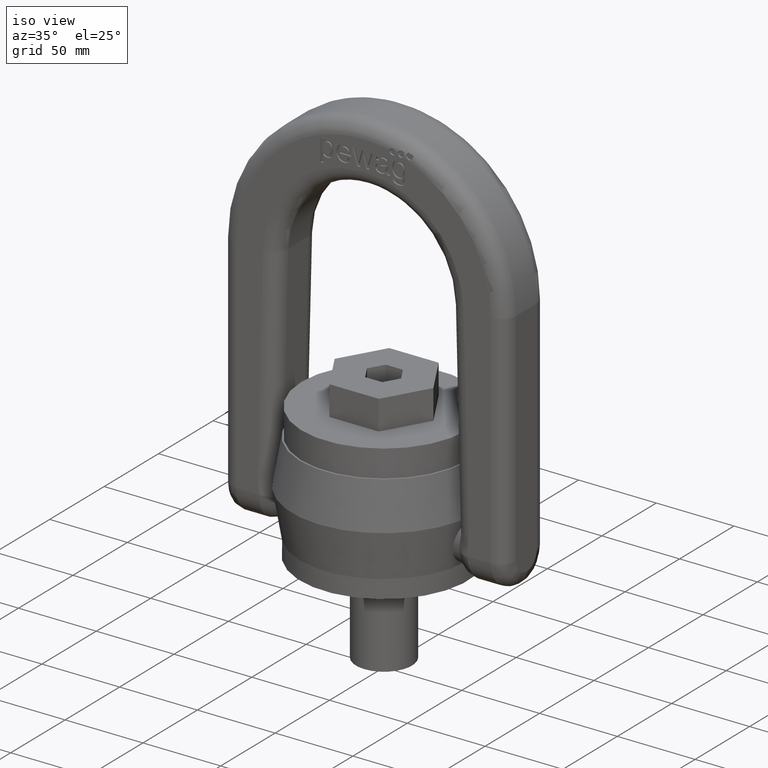
[diagram: clean part render]
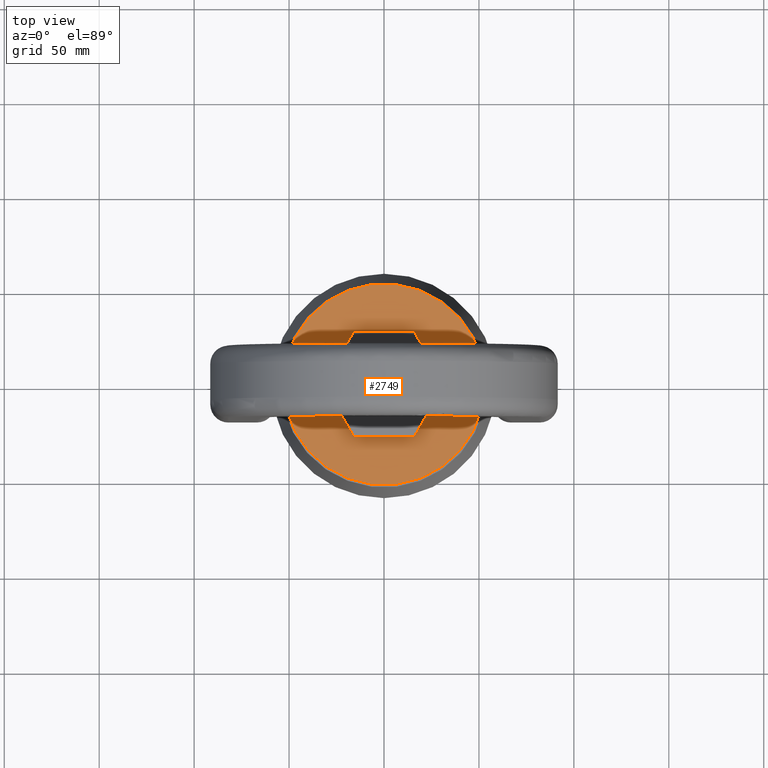
[diagram: tour spotlight — one face highlighted and labeled with its STEP entity id]
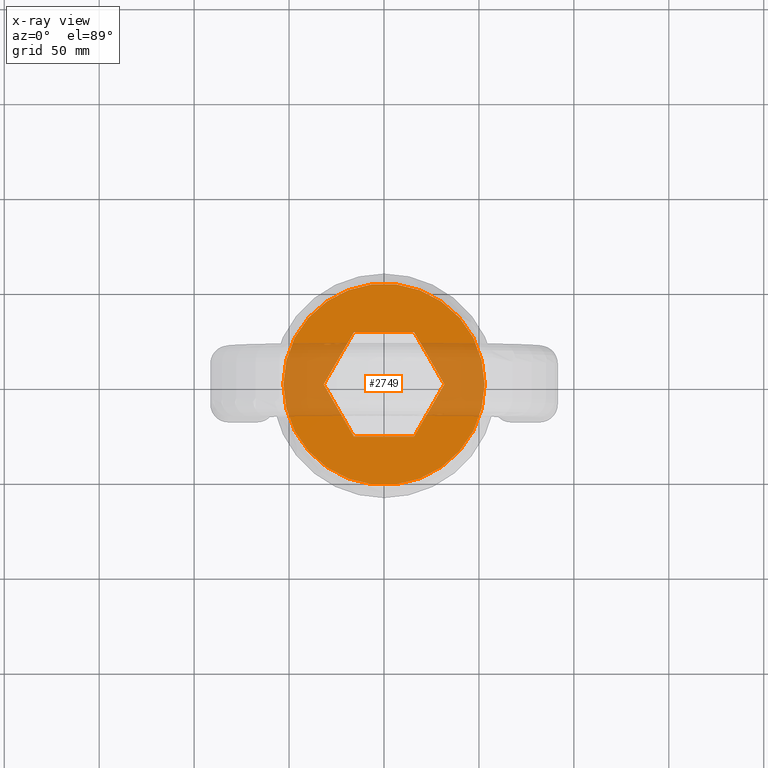
[diagram: x-ray of the same camera — body ghosted, this tour face saturated]
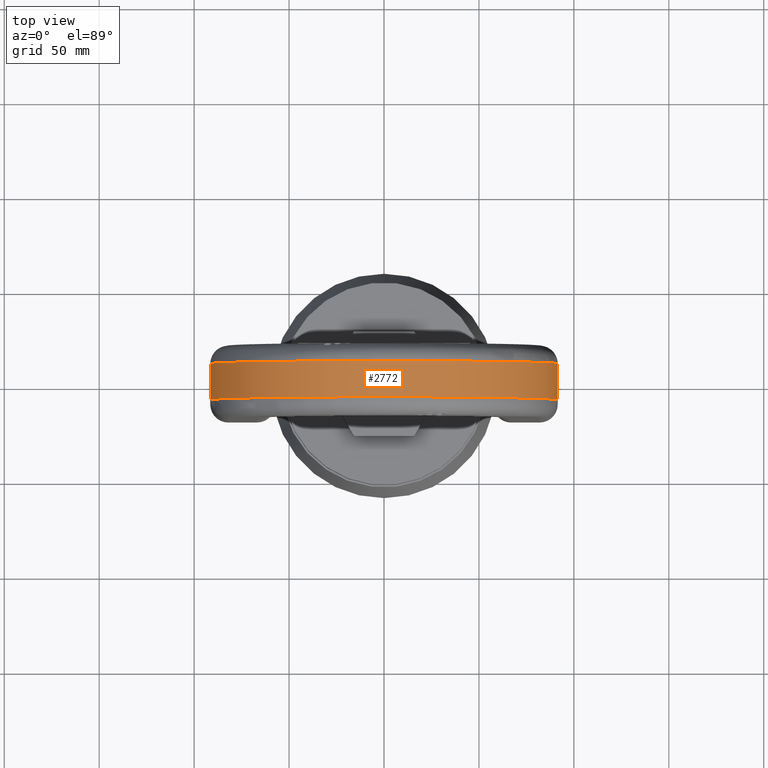
[diagram: tour spotlight — one face highlighted and labeled with its STEP entity id]
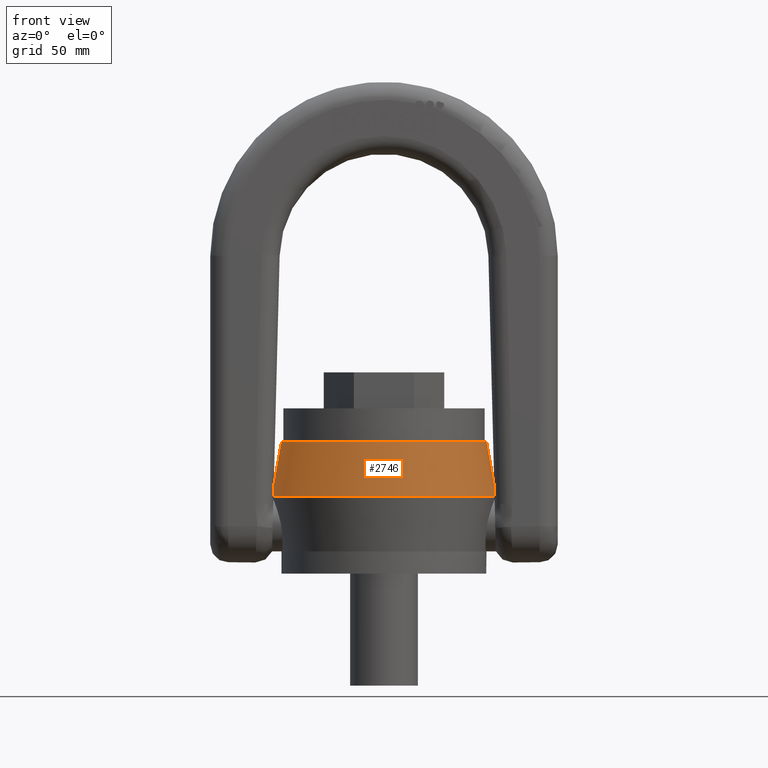
[diagram: tour spotlight — one face highlighted and labeled with its STEP entity id]
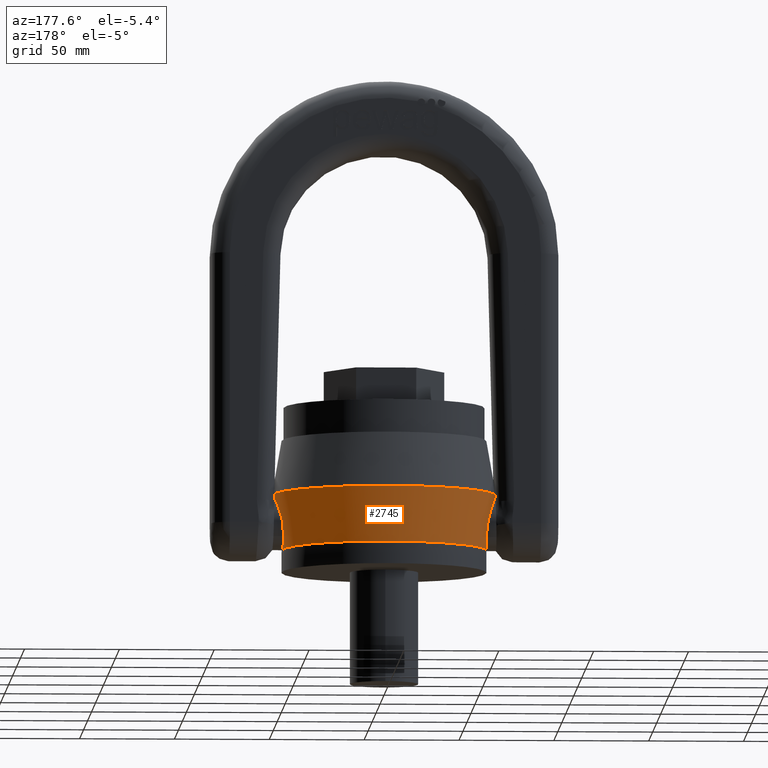
[diagram: tour spotlight — one face highlighted and labeled with its STEP entity id]
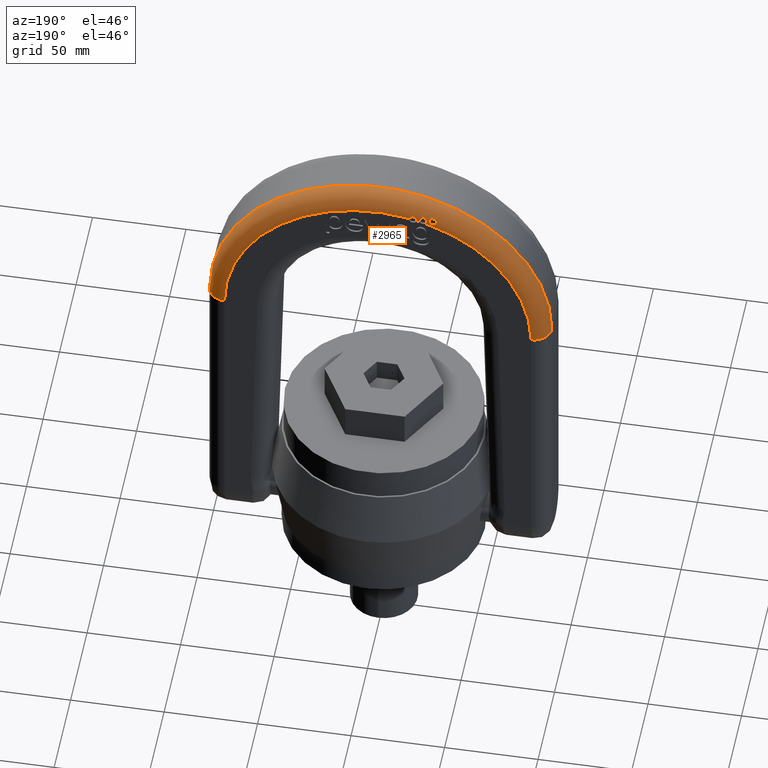
[diagram: tour spotlight — one face highlighted and labeled with its STEP entity id]
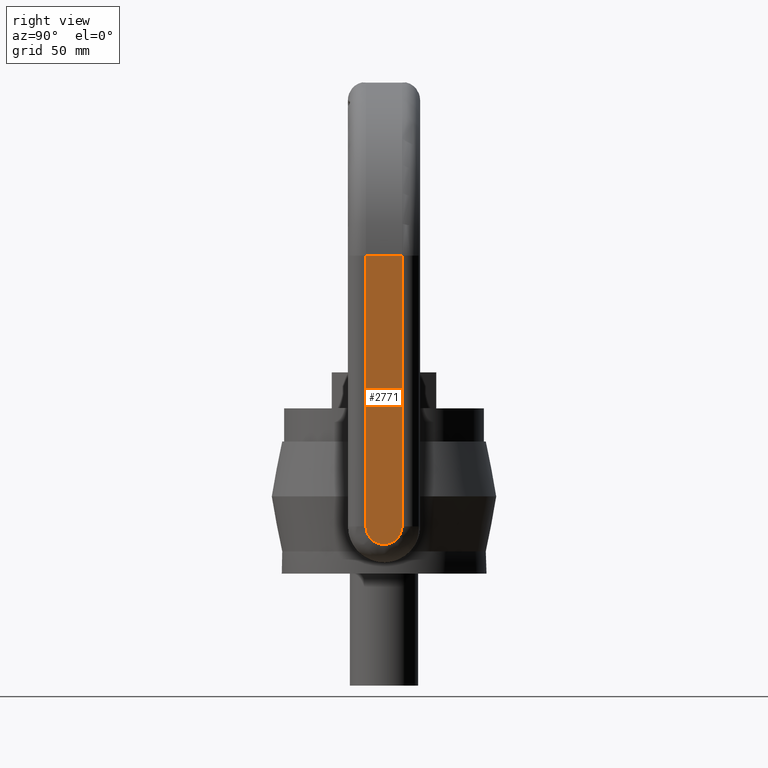
[diagram: tour spotlight — one face highlighted and labeled with its STEP entity id]
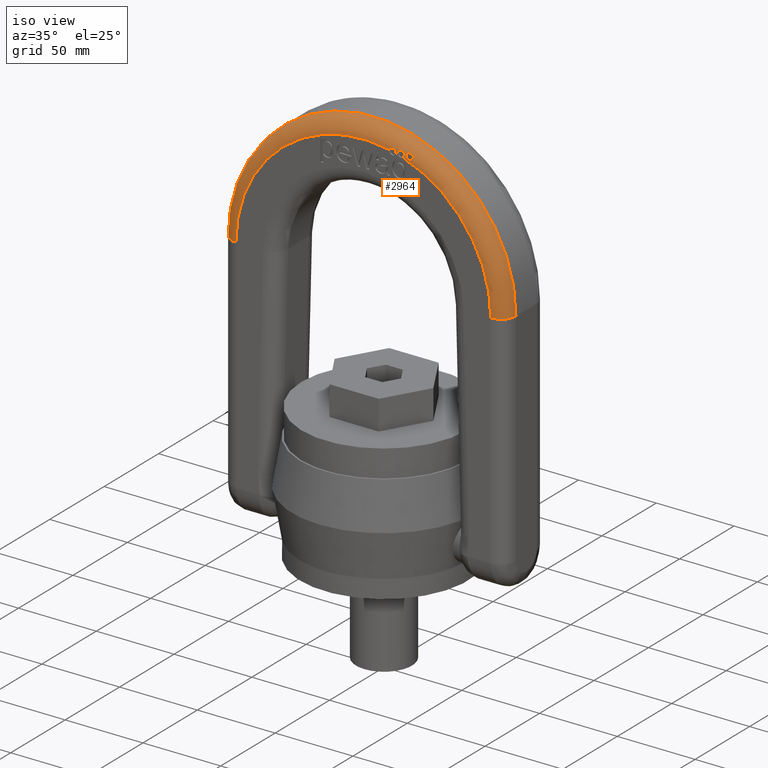
[diagram: tour spotlight — one face highlighted and labeled with its STEP entity id]
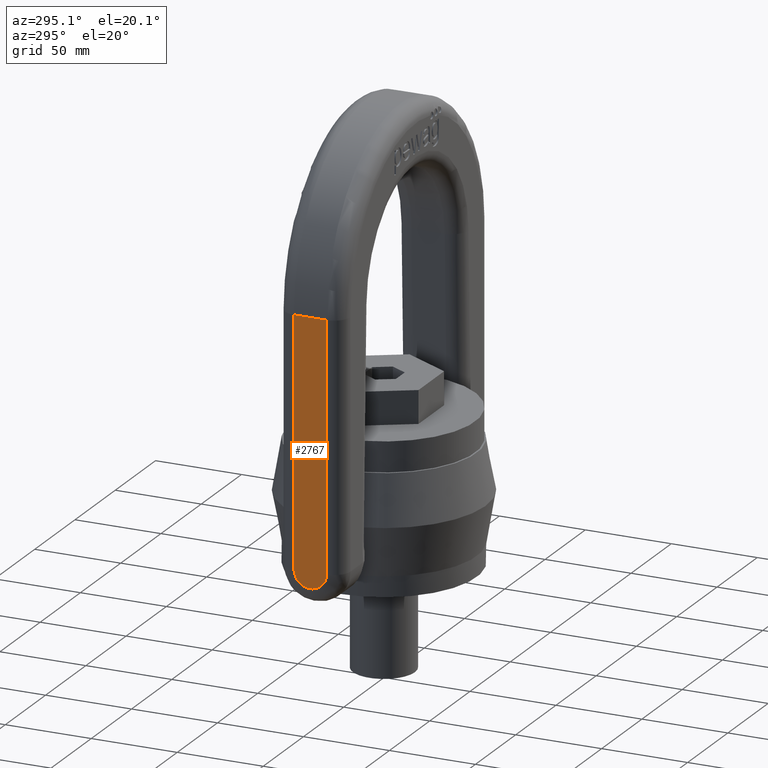
[diagram: tour spotlight — one face highlighted and labeled with its STEP entity id]
A machine part: a face-by-face anatomy tour. The part has 240 B-rep faces; the first image is the clean iso view, then the 8 largest visible faces are spotlighted one at a time (largest first), each with its STEP entity span.

Face 1 — top view, entity #2749. An x-ray twin of the same camera follows (body ghosted, this face saturated) — the face is partly hidden behind the body. In plain terms, the highlighted planar face has unit normal (0, 0, 1).
Definition (entity closure, byte-faithful):
#1757=LINE('',#6623,#2039);
#1758=LINE('',#6626,#2040);
#1759=LINE('',#6628,#2041);
#1760=LINE('',#6630,#2042);
#1761=LINE('',#6632,#2043);
#1762=LINE('',#6634,#2044);
#2039=VECTOR('',#5846,1.);
#2040=VECTOR('',#5847,1.);
#2041=VECTOR('',#5848,1.);
#2042=VECTOR('',#5849,1.);
#2043=VECTOR('',#5850,1.);
#2044=VECTOR('',#5851,1.);
#2630=PLANE('',#5622);
#2749=ADVANCED_FACE('',(#3017,#3018),#2630,.T.);
#3017=FACE_BOUND('',#3078,.T.);
#3018=FACE_BOUND('',#3079,.T.);
#3078=EDGE_LOOP('',(#3352,#3353,#3354,#3355,#3356,#3357));
#3079=EDGE_LOOP('',(#3358));
#3352=ORIENTED_EDGE('',*,*,#4953,.F.);
#3353=ORIENTED_EDGE('',*,*,#4954,.F.);
#3354=ORIENTED_EDGE('',*,*,#4955,.F.);
#3355=ORIENTED_EDGE('',*,*,#4956,.F.);
#3356=ORIENTED_EDGE('',*,*,#4957,.F.);
#3357=ORIENTED_EDGE('',*,*,#4958,.F.);
#3358=ORIENTED_EDGE('',*,*,#4952,.F.);
#4552=VERTEX_POINT('',#6621);
#4553=VERTEX_POINT('',#6624);
#4554=VERTEX_POINT('',#6625);
#4555=VERTEX_POINT('',#6627);
#4556=VERTEX_POINT('',#6629);
#4557=VERTEX_POINT('',#6631);
#4558=VERTEX_POINT('',#6633);
#4952=EDGE_CURVE('',#4552,#4552,#5556,.T.);
#4953=EDGE_CURVE('',#4553,#4554,#1757,.T.);
#4954=EDGE_CURVE('',#4555,#4553,#1758,.T.);
#4955=EDGE_CURVE('',#4556,#4555,#1759,.T.);
#4956=EDGE_CURVE('',#4557,#4556,#1760,.T.);
#4957=EDGE_CURVE('',#4558,#4557,#1761,.T.);
#4958=EDGE_CURVE('',#4554,#4558,#1762,.T.);
#5556=CIRCLE('',#5620,53.);
#5620=AXIS2_PLACEMENT_3D('',#6620,#5842,#5843);
#5622=AXIS2_PLACEMENT_3D('',#6635,#5852,#5853);
#5842=DIRECTION('',(0.,0.,-1.));
#5843=DIRECTION('',(-1.,0.,0.));
#5846=DIRECTION('',(0.5,-0.866025403784439,0.));
#5847=DIRECTION('',(-0.5,-0.866025403784439,0.));
#5848=DIRECTION('',(-1.,0.,0.));
#5849=DIRECTION('',(-0.5,0.866025403784439,0.));
#5850=DIRECTION('',(0.5,0.866025403784439,0.));
#5851=DIRECTION('',(1.,0.,0.));
#5852=DIRECTION('',(0.,0.,1.));
#5853=DIRECTION('',(1.,0.,0.));
#6620=CARTESIAN_POINT('',(0.,0.,87.));
#6621=CARTESIAN_POINT('',(-53.,0.,87.));
#6623=CARTESIAN_POINT('',(-31.7542648054294,0.,87.));
#6624=CARTESIAN_POINT('',(-31.7542648054294,0.,87.));
#6625=CARTESIAN_POINT('',(-15.8771324027147,-27.5,87.));
#6626=CARTESIAN_POINT('',(-15.8771324027147,27.5,87.));
#6627=CARTESIAN_POINT('',(-15.8771324027147,27.5,87.));
#6628=CARTESIAN_POINT('',(15.8771324027147,27.5,87.));
#6629=CARTESIAN_POINT('',(15.8771324027147,27.5,87.));
#6630=CARTESIAN_POINT('',(31.7542648054294,0.,87.));
#6631=CARTESIAN_POINT('',(31.7542648054294,0.,87.));
#6632=CARTESIAN_POINT('',(15.8771324027147,-27.5,87.));
#6633=CARTESIAN_POINT('',(15.8771324027147,-27.5,87.));
#6634=CARTESIAN_POINT('',(-15.8771324027147,-27.5,87.));
#6635=CARTESIAN_POINT('',(0.,53.,87.));

Face 2 — top view, entity #2772. In plain terms, the highlighted cylindrical surface (partial cylindrical patch) has radius 91.5 mm, axis along (0, 1, 0).
Definition (entity closure, byte-faithful):
#1833=LINE('',#7057,#2115);
#1843=LINE('',#7092,#2125);
#2115=VECTOR('',#5974,1.);
#2125=VECTOR('',#6004,1.);
#2434=FACE_OUTER_BOUND('',#3108,.T.);
#2772=ADVANCED_FACE('',(#2434),#2987,.T.);
#2987=CYLINDRICAL_SURFACE('',#5661,91.5);
#3108=EDGE_LOOP('',(#3533,#3534,#3535,#3536));
#3533=ORIENTED_EDGE('',*,*,#5091,.T.);
#3534=ORIENTED_EDGE('',*,*,#5093,.T.);
#3535=ORIENTED_EDGE('',*,*,#5075,.F.);
#3536=ORIENTED_EDGE('',*,*,#5094,.T.);
#4661=VERTEX_POINT('',#7058);
#4662=VERTEX_POINT('',#7059);
#4675=VERTEX_POINT('',#7091);
#4676=VERTEX_POINT('',#7093);
#5075=EDGE_CURVE('',#4661,#4662,#1833,.T.);
#5091=EDGE_CURVE('',#4676,#4675,#1843,.T.);
#5093=EDGE_CURVE('',#4675,#4662,#5569,.T.);
#5094=EDGE_CURVE('',#4661,#4676,#5570,.T.);
#5569=CIRCLE('',#5659,91.5);
#5570=CIRCLE('',#5660,91.5);
#5659=AXIS2_PLACEMENT_3D('',#7096,#6008,#6009);
#5660=AXIS2_PLACEMENT_3D('',#7097,#6010,#6011);
#5661=AXIS2_PLACEMENT_3D('',#7098,#6012,#6013);
#5974=DIRECTION('',(0.,1.,0.));
#6004=DIRECTION('',(0.,1.,0.));
#6008=DIRECTION('',(-2.34291072916505E-15,-1.,0.));
#6009=DIRECTION('',(1.,-2.35088208766256E-15,0.));
#6010=DIRECTION('',(0.,1.,0.));
#6011=DIRECTION('',(0.,0.,1.));
#6012=DIRECTION('',(0.,1.,0.));
#6013=DIRECTION('',(0.,0.,1.));
#7057=CARTESIAN_POINT('',(-91.5,-19.,167.5));
#7058=CARTESIAN_POINT('',(-91.5,-9.5,167.5));
#7059=CARTESIAN_POINT('',(-91.5,9.50000000000019,167.5));
#7091=CARTESIAN_POINT('',(91.5,9.49999999999976,167.5));
#7092=CARTESIAN_POINT('',(91.5,-19.,167.5));
#7093=CARTESIAN_POINT('',(91.5,-9.5,167.5));
#7096=CARTESIAN_POINT('',(0.,9.49999999999998,167.5));
#7097=CARTESIAN_POINT('',(0.,-9.5,167.5));
#7098=CARTESIAN_POINT('',(0.,-19.,167.5));

Face 3 — front view, entity #2746. In plain terms, the highlighted conical surface has half-angle 10 deg.
Definition (entity closure, byte-faithful):
#2412=CONICAL_SURFACE('',#5617,59.1046660915101,10.);
#2746=ADVANCED_FACE('',(#3011,#3012),#2412,.T.);
#3011=FACE_BOUND('',#3072,.T.);
#3012=FACE_BOUND('',#3073,.T.);
#3072=EDGE_LOOP('',(#3346));
#3073=EDGE_LOOP('',(#3347));
#3346=ORIENTED_EDGE('',*,*,#4950,.T.);
#3347=ORIENTED_EDGE('',*,*,#4949,.F.);
#4549=VERTEX_POINT('',#6612);
#4550=VERTEX_POINT('',#6615);
#4949=EDGE_CURVE('',#4549,#4549,#5553,.T.);
#4950=EDGE_CURVE('',#4550,#4550,#5554,.T.);
#5553=CIRCLE('',#5614,59.1046660915101);
#5554=CIRCLE('',#5616,54.);
#5614=AXIS2_PLACEMENT_3D('',#6611,#5830,#5831);
#5616=AXIS2_PLACEMENT_3D('',#6614,#5834,#5835);
#5617=AXIS2_PLACEMENT_3D('',#6616,#5836,#5837);
#5830=DIRECTION('',(0.,0.,-1.));
#5831=DIRECTION('',(-1.,0.,0.));
#5834=DIRECTION('',(0.,0.,-1.));
#5835=DIRECTION('',(-1.,0.,0.));
#5836=DIRECTION('',(0.,0.,-1.));
#5837=DIRECTION('',(-1.,0.,-1.17892288453515E-16));
#6611=CARTESIAN_POINT('',(0.,0.,40.65));
#6612=CARTESIAN_POINT('',(-59.1046660915101,0.,40.65));
#6614=CARTESIAN_POINT('',(0.,0.,69.6));
#6615=CARTESIAN_POINT('',(-54.,0.,69.6));
#6616=CARTESIAN_POINT('',(0.,0.,40.65));

Face 4 — auxiliary view, entity #2745. In plain terms, the highlighted conical surface has half-angle 10 deg.
Definition (entity closure, byte-faithful):
#2411=CONICAL_SURFACE('',#5615,54.,10.);
#2745=ADVANCED_FACE('',(#3009,#3010),#2411,.T.);
#3009=FACE_BOUND('',#3070,.T.);
#3010=FACE_BOUND('',#3071,.T.);
#3070=EDGE_LOOP('',(#3344));
#3071=EDGE_LOOP('',(#3345));
#3344=ORIENTED_EDGE('',*,*,#4949,.T.);
#3345=ORIENTED_EDGE('',*,*,#4945,.F.);
#4545=VERTEX_POINT('',#6600);
#4549=VERTEX_POINT('',#6612);
#4945=EDGE_CURVE('',#4545,#4545,#5549,.T.);
#4949=EDGE_CURVE('',#4549,#4549,#5553,.T.);
#5549=CIRCLE('',#5606,54.);
#5553=CIRCLE('',#5614,59.1046660915101);
#5606=AXIS2_PLACEMENT_3D('',#6599,#5814,#5815);
#5614=AXIS2_PLACEMENT_3D('',#6611,#5830,#5831);
#5615=AXIS2_PLACEMENT_3D('',#6613,#5832,#5833);
#5814=DIRECTION('',(0.,0.,-1.));
#5815=DIRECTION('',(-1.,0.,0.));
#5830=DIRECTION('',(0.,0.,-1.));
#5831=DIRECTION('',(-1.,0.,0.));
#5832=DIRECTION('',(0.,0.,1.));
#5833=DIRECTION('',(1.,0.,1.88289217207744E-16));
#6599=CARTESIAN_POINT('',(0.,0.,11.7));
#6600=CARTESIAN_POINT('',(-54.,0.,11.7));
#6611=CARTESIAN_POINT('',(0.,0.,40.65));
#6612=CARTESIAN_POINT('',(-59.1046660915101,0.,40.65));
#6613=CARTESIAN_POINT('',(0.,0.,11.7));

Face 5 — auxiliary view, entity #2965. In plain terms, the highlighted toroidal blend (fillet) surface has major radius 82 mm and minor (blend) radius 9.5 mm.
Definition (entity closure, byte-faithful):
#210=TOROIDAL_SURFACE('',#5789,82.,9.5);
#530=B_SPLINE_CURVE_WITH_KNOTS('',3,(#8495,#8496,#8497,#8498,#8499,#8500,
#8501,#8502,#8503,#8504,#8505,#8506,#8507,#8508,#8509,#8510,#8511,#8512,
#8513,#8514,#8515,#8516,#8517,#8518,#8519,#8520,#8521,#8522,#8523,#8524,
#8525,#8526,#8527,#8528,#8529,#8530,#8531,#8532,#8533,#8534,#8535,#8536,
#8537),.UNSPECIFIED.,.F.,.F.,(4,3,3,3,3,3,3,3,3,3,3,3,3,3,4),(0.,0.0745606969247898,
0.149123937915882,0.223777270084363,0.300483711126919,0.379444563225894,
0.457599018131704,0.531726707331943,0.60322854605804,0.676311237596835,
0.753266436787547,0.832390528875145,0.910046397434114,0.985156621746398,
1.),.UNSPECIFIED.);
#531=B_SPLINE_CURVE_WITH_KNOTS('',3,(#8542,#8543,#8544,#8545,#8546,#8547,
#8548,#8549,#8550,#8551,#8552,#8553,#8554,#8555,#8556,#8557,#8558,#8559,
#8560,#8561,#8562,#8563,#8564,#8565,#8566,#8567,#8568,#8569),
 .UNSPECIFIED.,.F.,.F.,(4,3,3,3,3,3,3,3,3,4),(0.,0.111981985041676,0.223858992847018,
0.337248614426887,0.451293500957239,0.563607174327733,0.674738286812412,
0.787131338013872,0.901193773217703,1.),.UNSPECIFIED.);
#556=B_SPLINE_CURVE_WITH_KNOTS('',3,(#8777,#8778,#8779,#8780,#8781,#8782,
#8783,#8784,#8785,#8786,#8787,#8788,#8789,#8790,#8791,#8792,#8793,#8794,
#8795,#8796,#8797,#8798,#8799,#8800,#8801,#8802,#8803,#8804,#8805,#8806,
#8807,#8808,#8809,#8810,#8811,#8812,#8813,#8814,#8815,#8816,#8817,#8818,
#8819),.UNSPECIFIED.,.F.,.F.,(4,3,3,3,3,3,3,3,3,3,3,3,3,3,4),(0.,0.0639135431170535,
0.147027193075006,0.228834789798668,0.305090818542821,0.377545304044842,
0.449104889187727,0.520948384143121,0.575898031268706,0.647694317191063,
0.719500405730673,0.791176592717571,0.86420574718199,0.941140281281008,
1.),.UNSPECIFIED.);
#2965=ADVANCED_FACE('',(#3061,#3062),#210,.T.);
#3061=FACE_BOUND('',#3320,.T.);
#3062=FACE_BOUND('',#3321,.T.);
#3320=EDGE_LOOP('',(#4475,#4476,#4477,#4478,#4479,#4480,#4481,#4482));
#3321=EDGE_LOOP('',(#4483,#4484));
#4475=ORIENTED_EDGE('',*,*,#5532,.T.);
#4476=ORIENTED_EDGE('',*,*,#5093,.F.);
#4477=ORIENTED_EDGE('',*,*,#5534,.F.);
#4478=ORIENTED_EDGE('',*,*,#5307,.F.);
#4479=ORIENTED_EDGE('',*,*,#5351,.F.);
#4480=ORIENTED_EDGE('',*,*,#5305,.F.);
#4481=ORIENTED_EDGE('',*,*,#5349,.F.);
#4482=ORIENTED_EDGE('',*,*,#5303,.F.);
#4483=ORIENTED_EDGE('',*,*,#5380,.F.);
#4484=ORIENTED_EDGE('',*,*,#5382,.F.);
#4662=VERTEX_POINT('',#7059);
#4675=VERTEX_POINT('',#7091);
#4802=VERTEX_POINT('',#8319);
#4803=VERTEX_POINT('',#8321);
#4804=VERTEX_POINT('',#8323);
#4805=VERTEX_POINT('',#8325);
#4806=VERTEX_POINT('',#8327);
#4807=VERTEX_POINT('',#8329);
#4864=VERTEX_POINT('',#8820);
#4865=VERTEX_POINT('',#8821);
#5093=EDGE_CURVE('',#4675,#4662,#5569,.T.);
#5303=EDGE_CURVE('',#4802,#4803,#5576,.T.);
#5305=EDGE_CURVE('',#4804,#4805,#5578,.T.);
#5307=EDGE_CURVE('',#4806,#4807,#5580,.T.);
#5349=EDGE_CURVE('',#4803,#4804,#530,.T.);
#5351=EDGE_CURVE('',#4805,#4806,#531,.T.);
#5380=EDGE_CURVE('',#4864,#4865,#556,.T.);
#5382=EDGE_CURVE('',#4865,#4864,#5584,.T.);
#5532=EDGE_CURVE('',#4802,#4662,#5588,.T.);
#5534=EDGE_CURVE('',#4807,#4675,#5590,.T.);
#5569=CIRCLE('',#5659,91.5);
#5576=CIRCLE('',#5715,82.);
#5578=CIRCLE('',#5717,82.);
#5580=CIRCLE('',#5719,82.);
#5584=CIRCLE('',#5734,86.2426406871192);
#5588=CIRCLE('',#5784,9.5);
#5590=CIRCLE('',#5788,9.5);
#5659=AXIS2_PLACEMENT_3D('',#7096,#6008,#6009);
#5715=AXIS2_PLACEMENT_3D('',#8320,#6257,#6258);
#5717=AXIS2_PLACEMENT_3D('',#8324,#6261,#6262);
#5719=AXIS2_PLACEMENT_3D('',#8328,#6265,#6266);
#5734=AXIS2_PLACEMENT_3D('',#8824,#6340,#6341);
#5784=AXIS2_PLACEMENT_3D('',#9599,#6542,#6543);
#5788=AXIS2_PLACEMENT_3D('',#9603,#6550,#6551);
#5789=AXIS2_PLACEMENT_3D('',#9604,#6552,#6553);
#6008=DIRECTION('',(-2.34291072916505E-15,-1.,0.));
#6009=DIRECTION('',(1.,-2.35088208766256E-15,0.));
#6257=DIRECTION('',(2.34291072916505E-15,1.,0.));
#6258=DIRECTION('',(1.,-2.32706807752986E-15,0.));
#6261=DIRECTION('',(2.34291072916505E-15,1.,0.));
#6262=DIRECTION('',(1.,-2.32706807752986E-15,0.));
#6265=DIRECTION('',(2.34291072916505E-15,1.,0.));
#6266=DIRECTION('',(1.,-2.32706807752986E-15,0.));
#6340=DIRECTION('',(2.34291072916505E-15,1.,0.));
#6341=DIRECTION('',(-1.,2.33327645825859E-15,0.));
#6542=DIRECTION('',(0.,0.,1.));
#6543=DIRECTION('',(0.999999999999999,0.,0.));
#6550=DIRECTION('',(0.,0.,-1.));
#6551=DIRECTION('',(-0.999999999999999,0.,0.));
#6552=DIRECTION('',(-2.34291072916505E-15,-1.,0.));
#6553=DIRECTION('',(1.,-2.35088208766256E-15,0.));
#7059=CARTESIAN_POINT('',(-91.5,9.50000000000019,167.5));
#7091=CARTESIAN_POINT('',(91.5,9.49999999999976,167.5));
#7096=CARTESIAN_POINT('',(0.,9.49999999999998,167.5));
#8319=CARTESIAN_POINT('',(-81.9999999999999,19.0000000000002,167.5));
#8320=CARTESIAN_POINT('',(2.2257651927068E-14,19.,167.5));
#8321=CARTESIAN_POINT('',(-25.4379855318607,19.0000000000001,245.454530927207));
#8323=CARTESIAN_POINT('',(-22.2533422268388,19.0000000000001,246.422675827263));
#8324=CARTESIAN_POINT('',(2.2257651927068E-14,19.,167.5));
#8325=CARTESIAN_POINT('',(-20.8771234007435,19.0000000000001,246.797829216884));
#8327=CARTESIAN_POINT('',(-16.8768992395193,19.,247.744440754853));
#8328=CARTESIAN_POINT('',(2.2257651927068E-14,19.,167.5));
#8329=CARTESIAN_POINT('',(82.,18.9999999999998,167.5));
#8495=CARTESIAN_POINT('',(-25.4379855318607,19.0000000000001,245.454530927207));
#8496=CARTESIAN_POINT('',(-25.6195856952769,19.0000000000001,245.590814574266));
#8497=CARTESIAN_POINT('',(-25.7805429562507,18.9942216870949,245.759866795854));
#8498=CARTESIAN_POINT('',(-25.9076289811382,18.9800822887072,245.947486281782));
#8499=CARTESIAN_POINT('',(-26.034723137226,18.9659419856544,246.135117771954));
#8500=CARTESIAN_POINT('',(-26.1313993565714,18.9429666125754,246.346396552085));
#8501=CARTESIAN_POINT('',(-26.1903738306359,18.9122147399698,246.563502016149));
#8502=CARTESIAN_POINT('',(-26.2494480158077,18.8814108736275,246.780974551332));
#8503=CARTESIAN_POINT('',(-26.2724135686419,18.8420373851102,247.010038251447));
#8504=CARTESIAN_POINT('',(-26.2584799058508,18.7986665071933,247.232878465692));
#8505=CARTESIAN_POINT('',(-26.2441661056822,18.754112387509,247.461798193692));
#8506=CARTESIAN_POINT('',(-26.1906398906304,18.7042524361813,247.690303021417));
#8507=CARTESIAN_POINT('',(-26.1022644677134,18.6563207577764,247.901221335353));
#8508=CARTESIAN_POINT('',(-26.0113846888146,18.6070308059787,248.118116588621));
#8509=CARTESIAN_POINT('',(-25.8809755416232,18.5585512392079,248.322539640648));
#8510=CARTESIAN_POINT('',(-25.7208340770028,18.5194749140577,248.497353646302));
#8511=CARTESIAN_POINT('',(-25.5624513855416,18.4808277494125,248.670247735827));
#8512=CARTESIAN_POINT('',(-25.370060095498,18.450507594933,248.819127150308));
#8513=CARTESIAN_POINT('',(-25.1602083083837,18.4347847149373,248.929517661547));
#8514=CARTESIAN_POINT('',(-24.9609839385967,18.4198580807569,249.034317722269));
#8515=CARTESIAN_POINT('',(-24.7403026240039,18.4177753190922,249.107351717571));
#8516=CARTESIAN_POINT('',(-24.5176670033278,18.4289638390506,249.142056242919));
#8517=CARTESIAN_POINT('',(-24.3025940038678,18.4397723006062,249.17558190399));
#8518=CARTESIAN_POINT('',(-24.0799769365261,18.4631052153851,249.174431520222));
#8519=CARTESIAN_POINT('',(-23.8671740177664,18.4947491446189,249.139635437135));
#8520=CARTESIAN_POINT('',(-23.6495916354495,18.5271037831205,249.104057848737));
#8521=CARTESIAN_POINT('',(-23.4365622491293,18.5687950582354,249.032575112196));
#8522=CARTESIAN_POINT('',(-23.243107096183,18.6131188473153,248.931257857775));
#8523=CARTESIAN_POINT('',(-23.0395814360269,18.6597499568811,248.824666429336));
#8524=CARTESIAN_POINT('',(-22.8522337712467,18.7103867349704,248.682199198234));
#8525=CARTESIAN_POINT('',(-22.6951638769036,18.7573405344351,248.514618541997));
#8526=CARTESIAN_POINT('',(-22.5338546457718,18.8055616230278,248.342514862147));
#8527=CARTESIAN_POINT('',(-22.4000362420754,18.8511080899072,248.138895815331));
#8528=CARTESIAN_POINT('',(-22.3058665269839,18.8876857759134,247.920355760199));
#8529=CARTESIAN_POINT('',(-22.2134539518478,18.9235809482951,247.705893507174));
#8530=CARTESIAN_POINT('',(-22.1567330423855,18.9517874532261,247.47084509347));
#8531=CARTESIAN_POINT('',(-22.1417028694794,18.9701157552172,247.23576899374));
#8532=CARTESIAN_POINT('',(-22.1271533390164,18.9878579455313,247.008210275985));
#8533=CARTESIAN_POINT('',(-22.1512441924622,18.9969290449511,246.774303504889));
#8534=CARTESIAN_POINT('',(-22.2122612623308,18.9993017570317,246.553893133985));
#8535=CARTESIAN_POINT('',(-22.2244888612791,18.9997772399056,246.509723697051));
#8536=CARTESIAN_POINT('',(-22.2381980401234,19.0000000000001,246.465934734181));
#8537=CARTESIAN_POINT('',(-22.2533422268388,19.0000000000001,246.422675827263));
#8542=CARTESIAN_POINT('',(-20.8771234007435,19.0000000000001,246.797829216884));
#8543=CARTESIAN_POINT('',(-20.9110468390595,19.0000000000001,247.023694642976));
#8544=CARTESIAN_POINT('',(-20.9068141611019,18.9914459007873,247.25845618656));
#8545=CARTESIAN_POINT('',(-20.8649968516159,18.9770971348185,247.482535225993));
#8546=CARTESIAN_POINT('',(-20.8232023925161,18.9627562094986,247.706491821094));
#8547=CARTESIAN_POINT('',(-20.7428255778032,18.9423839739438,247.925933133314));
#8548=CARTESIAN_POINT('',(-20.6304929614576,18.9211810896674,248.123520623918));
#8549=CARTESIAN_POINT('',(-20.5166734259172,18.8996975480303,248.323723531503));
#8550=CARTESIAN_POINT('',(-20.3668988993117,18.8769384685224,248.507023227896));
#8551=CARTESIAN_POINT('',(-20.1931318849592,18.8585983802435,248.658569588203));
#8552=CARTESIAN_POINT('',(-20.0184428962474,18.8401609829834,248.810920024353));
#8553=CARTESIAN_POINT('',(-19.8145212436434,18.8258453742859,248.935384905638));
#8554=CARTESIAN_POINT('',(-19.598489097185,18.8193387223915,249.021143934128));
#8555=CARTESIAN_POINT('',(-19.3856834801043,18.8129292500319,249.105622116091));
#8556=CARTESIAN_POINT('',(-19.1552061174029,18.8139796589227,249.154865328565));
#8557=CARTESIAN_POINT('',(-18.9265178452736,18.8222226120443,249.164744758665));
#8558=CARTESIAN_POINT('',(-18.700117499056,18.8303830980334,249.174525349397));
#8559=CARTESIAN_POINT('',(-18.4693218295418,18.8457207223509,249.146082102667));
#8560=CARTESIAN_POINT('',(-18.2526173158451,18.864477248549,249.081998432964));
#8561=CARTESIAN_POINT('',(-18.0334611559971,18.8834459732126,249.017189764601));
#8562=CARTESIAN_POINT('',(-17.8227263822352,18.9062711085602,248.914218250513));
#8563=CARTESIAN_POINT('',(-17.6370376249547,18.9273285754875,248.78130599782));
#8564=CARTESIAN_POINT('',(-17.4486942946523,18.9486870761684,248.646493655506));
#8565=CARTESIAN_POINT('',(-17.2808933236144,18.9686457055029,248.477050773339));
#8566=CARTESIAN_POINT('',(-17.1477362667283,18.9818706039482,248.28679288645));
#8567=CARTESIAN_POINT('',(-17.0320048900417,18.9933648179194,248.121433215022));
#8568=CARTESIAN_POINT('',(-16.9396577515155,19.,247.936615307309));
#8569=CARTESIAN_POINT('',(-16.8768992395193,19.,247.744440754853));
#8777=CARTESIAN_POINT('',(-28.5271039387471,18.0000000000001,248.8879439079));
#8778=CARTESIAN_POINT('',(-28.3621323855462,18.0723427570918,248.792185932938));
#8779=CARTESIAN_POINT('',(-28.2103433474408,18.1485695107158,248.673137301059));
#8780=CARTESIAN_POINT('',(-28.0784184350381,18.2229231454154,248.53644043887));
#8781=CARTESIAN_POINT('',(-27.9073348812075,18.3193468142507,248.359168500197));
#8782=CARTESIAN_POINT('',(-27.76557642386,18.4149329652012,248.147151833854));
#8783=CARTESIAN_POINT('',(-27.6668108143812,18.4994687510093,247.91673590158));
#8784=CARTESIAN_POINT('',(-27.5696926411318,18.5825944577733,247.690163367394));
#8785=CARTESIAN_POINT('',(-27.5116474434712,18.657427102899,247.438738535164));
#8786=CARTESIAN_POINT('',(-27.50162007912,18.7178310939712,247.185899167631));
#8787=CARTESIAN_POINT('',(-27.4922619498209,18.7742036699381,246.949934520251));
#8788=CARTESIAN_POINT('',(-27.5246038579285,18.819784432201,246.705834133622));
#8789=CARTESIAN_POINT('',(-27.5977177123428,18.8538654234846,246.476841541943));
#8790=CARTESIAN_POINT('',(-27.6672791002779,18.8862904826595,246.258975275261));
#8791=CARTESIAN_POINT('',(-27.7756246754495,18.9094591132336,246.048665575476));
#8792=CARTESIAN_POINT('',(-27.9141269818242,18.9254638725531,245.86450032327));
#8793=CARTESIAN_POINT('',(-28.05097849624,18.9412778731142,245.682530114059));
#8794=CARTESIAN_POINT('',(-28.2209771198688,18.9507348341886,245.521041250739));
#8795=CARTESIAN_POINT('',(-28.4102208788833,18.9560363605268,245.39356470331));
#8796=CARTESIAN_POINT('',(-28.6002044977096,18.9613586134998,245.265589778683));
#8797=CARTESIAN_POINT('',(-28.8147957312562,18.9627381367919,245.168361951821));
#8798=CARTESIAN_POINT('',(-29.0363331589004,18.9606487312157,245.109911240367));
#8799=CARTESIAN_POINT('',(-29.20676851183,18.9590412891659,245.064943364096));
#8800=CARTESIAN_POINT('',(-29.3844480788327,18.9553059183823,245.041829626129));
#8801=CARTESIAN_POINT('',(-29.5606022133652,18.9487792109719,245.041667539776));
#8802=CARTESIAN_POINT('',(-29.7890883596042,18.9403135440842,245.041457300679));
#8803=CARTESIAN_POINT('',(-30.0205911918562,18.9268501847951,245.080333660445));
#8804=CARTESIAN_POINT('',(-30.2358041126949,18.905962302916,245.154662159919));
#8805=CARTESIAN_POINT('',(-30.4510371191083,18.8850724715948,245.228997596388));
#8806=CARTESIAN_POINT('',(-30.6558495511615,18.8559753406535,245.34085058345));
#8807=CARTESIAN_POINT('',(-30.8333520056687,18.8172869850138,245.479715550231));
#8808=CARTESIAN_POINT('',(-31.010606784097,18.7786526127416,245.618386753323));
#8809=CARTESIAN_POINT('',(-31.1653866169714,18.7292882412796,245.787586010115));
#8810=CARTESIAN_POINT('',(-31.2865439311491,18.6708272141588,245.972098305892));
#8811=CARTESIAN_POINT('',(-31.4100428303522,18.6112363215684,246.160176636717));
#8812=CARTESIAN_POINT('',(-31.501966001181,18.5406639533337,246.368846953822));
#8813=CARTESIAN_POINT('',(-31.5576712051176,18.4641178151215,246.581483098655));
#8814=CARTESIAN_POINT('',(-31.6163411558389,18.3834977322666,246.805436181263));
#8815=CARTESIAN_POINT('',(-31.6365774797534,18.2942483233496,247.039456174303));
#8816=CARTESIAN_POINT('',(-31.6185659791186,18.2047041764466,247.266951615328));
#8817=CARTESIAN_POINT('',(-31.6047905806553,18.1362198047856,247.440942689823));
#8818=CARTESIAN_POINT('',(-31.5686420573432,18.0664860698951,247.614100645763));
#8819=CARTESIAN_POINT('',(-31.5112206117936,18.0000000000042,247.779736224278));
#8820=CARTESIAN_POINT('',(-28.5271039387471,18.0000000000001,248.8879439079));
#8821=CARTESIAN_POINT('',(-31.5112206117936,18.0000000000042,247.779736224278));
#8824=CARTESIAN_POINT('',(1.99147411979029E-14,18.,167.5));
#9599=CARTESIAN_POINT('',(-82.,9.50000000000019,167.5));
#9603=CARTESIAN_POINT('',(82.,9.49999999999981,167.5));
#9604=CARTESIAN_POINT('',(0.,9.5,167.5));

Face 6 — right view, entity #2771. In plain terms, the highlighted planar face has unit normal (-1, 0, -0).
Definition (entity closure, byte-faithful):
#1842=LINE('',#7090,#2124);
#1843=LINE('',#7092,#2125);
#1844=LINE('',#7094,#2126);
#2124=VECTOR('',#6003,1.);
#2125=VECTOR('',#6004,1.);
#2126=VECTOR('',#6005,1.);
#2433=FACE_OUTER_BOUND('',#3107,.T.);
#2649=PLANE('',#5658);
#2771=ADVANCED_FACE('',(#2433),#2649,.F.);
#3107=EDGE_LOOP('',(#3529,#3530,#3531,#3532));
#3529=ORIENTED_EDGE('',*,*,#5089,.T.);
#3530=ORIENTED_EDGE('',*,*,#5090,.T.);
#3531=ORIENTED_EDGE('',*,*,#5091,.F.);
#3532=ORIENTED_EDGE('',*,*,#5092,.T.);
#4673=VERTEX_POINT('',#7088);
#4674=VERTEX_POINT('',#7089);
#4675=VERTEX_POINT('',#7091);
#4676=VERTEX_POINT('',#7093);
#5089=EDGE_CURVE('',#4673,#4674,#5568,.T.);
#5090=EDGE_CURVE('',#4674,#4675,#1842,.T.);
#5091=EDGE_CURVE('',#4676,#4675,#1843,.T.);
#5092=EDGE_CURVE('',#4676,#4673,#1844,.T.);
#5568=CIRCLE('',#5657,9.49999999999993);
#5657=AXIS2_PLACEMENT_3D('',#7087,#6001,#6002);
#5658=AXIS2_PLACEMENT_3D('',#7095,#6006,#6007);
#6001=DIRECTION('',(1.,0.,4.29254185209232E-16));
#6002=DIRECTION('',(0.,0.,1.));
#6003=DIRECTION('',(-4.29254185209232E-16,1.00570423606571E-30,1.));
#6004=DIRECTION('',(0.,1.,0.));
#6005=DIRECTION('',(4.29254185209232E-16,0.,-1.));
#6006=DIRECTION('',(-1.,0.,-4.29254185209232E-16));
#6007=DIRECTION('',(-4.30211422042248E-16,0.,1.));
#7087=CARTESIAN_POINT('',(91.5,-9.65262376107528E-14,24.8499999999999));
#7088=CARTESIAN_POINT('',(91.5,-9.5,24.8499999999999));
#7089=CARTESIAN_POINT('',(91.5,9.49999999999983,24.8499999999999));
#7090=CARTESIAN_POINT('',(91.5,9.49999999999981,5.84999999999999));
#7091=CARTESIAN_POINT('',(91.5,9.49999999999976,167.5));
#7092=CARTESIAN_POINT('',(91.5,-19.,167.5));
#7093=CARTESIAN_POINT('',(91.5,-9.5,167.5));
#7094=CARTESIAN_POINT('',(91.5,-9.5,5.84999999999999));
#7095=CARTESIAN_POINT('',(91.5,-19.,5.84999999999999));

Face 7 — iso view, entity #2964. In plain terms, the highlighted toroidal blend (fillet) surface has major radius 82 mm and minor (blend) radius 9.5 mm.
Definition (entity closure, byte-faithful):
#209=TOROIDAL_SURFACE('',#5787,82.,9.5);
#357=B_SPLINE_CURVE_WITH_KNOTS('',3,(#7101,#7102,#7103,#7104,#7105,#7106,
#7107,#7108,#7109,#7110,#7111,#7112,#7113,#7114,#7115,#7116,#7117,#7118,
#7119,#7120,#7121,#7122,#7123,#7124,#7125,#7126,#7127,#7128,#7129,#7130,
#7131,#7132,#7133,#7134,#7135,#7136,#7137,#7138,#7139,#7140,#7141,#7142,
#7143),.UNSPECIFIED.,.F.,.F.,(4,3,3,3,3,3,3,3,3,3,3,3,3,3,4),(0.,0.0745606969247899,
0.149123937915882,0.223777270084362,0.300483711126921,0.379444563225892,
0.457599018131704,0.53172670733194,0.603228546058038,0.676311237596831,
0.753266436787543,0.83239052887514,0.910046397434109,0.985156621746392,
1.),.UNSPECIFIED.);
#358=B_SPLINE_CURVE_WITH_KNOTS('',3,(#7148,#7149,#7150,#7151,#7152,#7153,
#7154,#7155,#7156,#7157,#7158,#7159,#7160,#7161,#7162,#7163,#7164,#7165,
#7166,#7167,#7168,#7169,#7170,#7171,#7172,#7173,#7174,#7175),
 .UNSPECIFIED.,.F.,.F.,(4,3,3,3,3,3,3,3,3,4),(0.,0.111981985041675,0.223858992847016,
0.337248614426889,0.451293500957232,0.563607174327729,0.674738286812405,
0.787131338013864,0.901193773217693,1.),.UNSPECIFIED.);
#383=B_SPLINE_CURVE_WITH_KNOTS('',3,(#7383,#7384,#7385,#7386,#7387,#7388,
#7389,#7390,#7391,#7392,#7393,#7394,#7395,#7396,#7397,#7398,#7399,#7400,
#7401,#7402,#7403,#7404,#7405,#7406,#7407,#7408,#7409,#7410,#7411,#7412,
#7413,#7414,#7415,#7416,#7417,#7418,#7419,#7420,#7421,#7422,#7423,#7424,
#7425),.UNSPECIFIED.,.F.,.F.,(4,3,3,3,3,3,3,3,3,3,3,3,3,3,4),(0.,0.0639135431170984,
0.147027193075101,0.22883478979882,0.305090818543024,0.377545304045094,
0.449104889188023,0.520948384143468,0.57589803126909,0.647694317191496,
0.719500405731154,0.791176592718099,0.864205747182567,0.941140281281636,
1.),.UNSPECIFIED.);
#2964=ADVANCED_FACE('',(#3059,#3060),#209,.T.);
#3059=FACE_BOUND('',#3318,.T.);
#3060=FACE_BOUND('',#3319,.T.);
#3318=EDGE_LOOP('',(#4465,#4466,#4467,#4468,#4469,#4470,#4471,#4472));
#3319=EDGE_LOOP('',(#4473,#4474));
#4465=ORIENTED_EDGE('',*,*,#5096,.F.);
#4466=ORIENTED_EDGE('',*,*,#5030,.F.);
#4467=ORIENTED_EDGE('',*,*,#5533,.F.);
#4468=ORIENTED_EDGE('',*,*,#5094,.F.);
#4469=ORIENTED_EDGE('',*,*,#5531,.T.);
#4470=ORIENTED_EDGE('',*,*,#5034,.F.);
#4471=ORIENTED_EDGE('',*,*,#5098,.F.);
#4472=ORIENTED_EDGE('',*,*,#5032,.F.);
#4473=ORIENTED_EDGE('',*,*,#5127,.F.);
#4474=ORIENTED_EDGE('',*,*,#5129,.F.);
#4616=VERTEX_POINT('',#6883);
#4617=VERTEX_POINT('',#6885);
#4618=VERTEX_POINT('',#6887);
#4619=VERTEX_POINT('',#6889);
#4620=VERTEX_POINT('',#6891);
#4621=VERTEX_POINT('',#6893);
#4661=VERTEX_POINT('',#7058);
#4676=VERTEX_POINT('',#7093);
#4694=VERTEX_POINT('',#7426);
#4695=VERTEX_POINT('',#7427);
#5030=EDGE_CURVE('',#4616,#4617,#5560,.T.);
#5032=EDGE_CURVE('',#4618,#4619,#5562,.T.);
#5034=EDGE_CURVE('',#4620,#4621,#5564,.T.);
#5094=EDGE_CURVE('',#4661,#4676,#5570,.T.);
#5096=EDGE_CURVE('',#4617,#4618,#357,.T.);
#5098=EDGE_CURVE('',#4619,#4620,#358,.T.);
#5127=EDGE_CURVE('',#4694,#4695,#383,.T.);
#5129=EDGE_CURVE('',#4695,#4694,#5574,.T.);
#5531=EDGE_CURVE('',#4661,#4621,#5587,.T.);
#5533=EDGE_CURVE('',#4676,#4616,#5589,.T.);
#5560=CIRCLE('',#5642,82.);
#5562=CIRCLE('',#5644,82.);
#5564=CIRCLE('',#5646,82.);
#5570=CIRCLE('',#5660,91.5);
#5574=CIRCLE('',#5675,86.2426406871192);
#5587=CIRCLE('',#5782,9.5);
#5589=CIRCLE('',#5786,9.5);
#5642=AXIS2_PLACEMENT_3D('',#6884,#5939,#5940);
#5644=AXIS2_PLACEMENT_3D('',#6888,#5943,#5944);
#5646=AXIS2_PLACEMENT_3D('',#6892,#5947,#5948);
#5660=AXIS2_PLACEMENT_3D('',#7097,#6010,#6011);
#5675=AXIS2_PLACEMENT_3D('',#7430,#6062,#6063);
#5782=AXIS2_PLACEMENT_3D('',#9597,#6538,#6539);
#5786=AXIS2_PLACEMENT_3D('',#9601,#6546,#6547);
#5787=AXIS2_PLACEMENT_3D('',#9602,#6548,#6549);
#5939=DIRECTION('',(0.,-1.,0.));
#5940=DIRECTION('',(0.,0.,1.));
#5943=DIRECTION('',(0.,-1.,0.));
#5944=DIRECTION('',(0.,0.,1.));
#5947=DIRECTION('',(0.,-1.,0.));
#5948=DIRECTION('',(0.,0.,1.));
#6010=DIRECTION('',(0.,1.,0.));
#6011=DIRECTION('',(0.,0.,1.));
#6062=DIRECTION('',(0.,-1.,0.));
#6063=DIRECTION('',(0.,0.,-1.));
#6538=DIRECTION('',(0.,0.,1.));
#6539=DIRECTION('',(0.999999999999999,0.,0.));
#6546=DIRECTION('',(0.,0.,-1.));
#6547=DIRECTION('',(-0.999999999999999,0.,0.));
#6548=DIRECTION('',(0.,1.,0.));
#6549=DIRECTION('',(0.,0.,1.));
#6883=CARTESIAN_POINT('',(82.,-19.,167.5));
#6884=CARTESIAN_POINT('',(0.,-19.,167.5));
#6885=CARTESIAN_POINT('',(25.4379855318607,-19.,245.454530927207));
#6887=CARTESIAN_POINT('',(22.2533422268389,-19.,246.422675827263));
#6888=CARTESIAN_POINT('',(0.,-19.,167.5));
#6889=CARTESIAN_POINT('',(20.8771234007435,-19.,246.797829216884));
#6891=CARTESIAN_POINT('',(16.8768992395193,-19.,247.744440754853));
#6892=CARTESIAN_POINT('',(0.,-19.,167.5));
#6893=CARTESIAN_POINT('',(-82.,-19.,167.5));
#7058=CARTESIAN_POINT('',(-91.5,-9.5,167.5));
#7093=CARTESIAN_POINT('',(91.5,-9.5,167.5));
#7097=CARTESIAN_POINT('',(0.,-9.5,167.5));
#7101=CARTESIAN_POINT('',(25.4379855318607,-19.,245.454530927207));
#7102=CARTESIAN_POINT('',(25.6195856952769,-19.,245.590814574266));
#7103=CARTESIAN_POINT('',(25.7805429562507,-18.9942216870948,245.759866795854));
#7104=CARTESIAN_POINT('',(25.9076289811383,-18.9800822887071,245.947486281782));
#7105=CARTESIAN_POINT('',(26.034723137226,-18.9659419856543,246.135117771954));
#7106=CARTESIAN_POINT('',(26.1313993565714,-18.9429666125754,246.346396552085));
#7107=CARTESIAN_POINT('',(26.190373830636,-18.9122147399697,246.563502016149));
#7108=CARTESIAN_POINT('',(26.2494480158078,-18.8814108736275,246.780974551332));
#7109=CARTESIAN_POINT('',(26.2724135686419,-18.8420373851102,247.010038251447));
#7110=CARTESIAN_POINT('',(26.2584799058508,-18.7986665071933,247.232878465692));
#7111=CARTESIAN_POINT('',(26.2441661056823,-18.754112387509,247.461798193692));
#7112=CARTESIAN_POINT('',(26.1906398906304,-18.7042524361813,247.690303021417));
#7113=CARTESIAN_POINT('',(26.1022644677135,-18.6563207577764,247.901221335353));
#7114=CARTESIAN_POINT('',(26.0113846888146,-18.6070308059786,248.118116588621));
#7115=CARTESIAN_POINT('',(25.8809755416232,-18.5585512392078,248.322539640648));
#7116=CARTESIAN_POINT('',(25.7208340770029,-18.5194749140576,248.497353646302));
#7117=CARTESIAN_POINT('',(25.5624513855417,-18.4808277494124,248.670247735827));
#7118=CARTESIAN_POINT('',(25.370060095498,-18.4505075949329,248.819127150308));
#7119=CARTESIAN_POINT('',(25.1602083083837,-18.4347847149373,248.929517661547));
#7120=CARTESIAN_POINT('',(24.9609839385967,-18.4198580807568,249.034317722269));
#7121=CARTESIAN_POINT('',(24.740302624004,-18.4177753190921,249.107351717571));
#7122=CARTESIAN_POINT('',(24.5176670033279,-18.4289638390506,249.142056242919));
#7123=CARTESIAN_POINT('',(24.3025940038679,-18.4397723006062,249.17558190399));
#7124=CARTESIAN_POINT('',(24.0799769365262,-18.463105215385,249.174431520222));
#7125=CARTESIAN_POINT('',(23.8671740177664,-18.4947491446188,249.139635437135));
#7126=CARTESIAN_POINT('',(23.6495916354496,-18.5271037831204,249.104057848737));
#7127=CARTESIAN_POINT('',(23.4365622491294,-18.5687950582353,249.032575112196));
#7128=CARTESIAN_POINT('',(23.2431070961831,-18.6131188473152,248.931257857775));
#7129=CARTESIAN_POINT('',(23.039581436027,-18.659749956881,248.824666429336));
#7130=CARTESIAN_POINT('',(22.8522337712468,-18.7103867349703,248.682199198234));
#7131=CARTESIAN_POINT('',(22.6951638769036,-18.7573405344351,248.514618541998));
#7132=CARTESIAN_POINT('',(22.5338546457719,-18.8055616230278,248.342514862147));
#7133=CARTESIAN_POINT('',(22.4000362420754,-18.8511080899071,248.138895815331));
#7134=CARTESIAN_POINT('',(22.305866526984,-18.8876857759133,247.920355760199));
#7135=CARTESIAN_POINT('',(22.2134539518479,-18.9235809482951,247.705893507174));
#7136=CARTESIAN_POINT('',(22.1567330423856,-18.9517874532261,247.47084509347));
#7137=CARTESIAN_POINT('',(22.1417028694795,-18.9701157552172,247.23576899374));
#7138=CARTESIAN_POINT('',(22.1271533390165,-18.9878579455313,247.008210275985));
#7139=CARTESIAN_POINT('',(22.1512441924622,-18.996929044951,246.774303504889));
#7140=CARTESIAN_POINT('',(22.2122612623308,-18.9993017570316,246.553893133985));
#7141=CARTESIAN_POINT('',(22.2244888612791,-18.9997772399056,246.509723697051));
#7142=CARTESIAN_POINT('',(22.2381980401234,-19.,246.465934734181));
#7143=CARTESIAN_POINT('',(22.2533422268389,-19.,246.422675827263));
#7148=CARTESIAN_POINT('',(20.8771234007435,-19.,246.797829216884));
#7149=CARTESIAN_POINT('',(20.9110468390595,-19.,247.023694642976));
#7150=CARTESIAN_POINT('',(20.9068141611019,-18.9914459007873,247.25845618656));
#7151=CARTESIAN_POINT('',(20.864996851616,-18.9770971348185,247.482535225993));
#7152=CARTESIAN_POINT('',(20.8232023925161,-18.9627562094986,247.706491821094));
#7153=CARTESIAN_POINT('',(20.7428255778033,-18.9423839739438,247.925933133314));
#7154=CARTESIAN_POINT('',(20.6304929614576,-18.9211810896674,248.123520623918));
#7155=CARTESIAN_POINT('',(20.5166734259172,-18.8996975480303,248.323723531503));
#7156=CARTESIAN_POINT('',(20.3668988993117,-18.8769384685223,248.507023227896));
#7157=CARTESIAN_POINT('',(20.1931318849592,-18.8585983802435,248.658569588203));
#7158=CARTESIAN_POINT('',(20.0184428962475,-18.8401609829834,248.810920024353));
#7159=CARTESIAN_POINT('',(19.8145212436434,-18.8258453742859,248.935384905638));
#7160=CARTESIAN_POINT('',(19.5984890971851,-18.8193387223915,249.021143934128));
#7161=CARTESIAN_POINT('',(19.3856834801043,-18.8129292500319,249.105622116091));
#7162=CARTESIAN_POINT('',(19.1552061174029,-18.8139796589227,249.154865328565));
#7163=CARTESIAN_POINT('',(18.9265178452737,-18.8222226120443,249.164744758665));
#7164=CARTESIAN_POINT('',(18.700117499056,-18.8303830980333,249.174525349397));
#7165=CARTESIAN_POINT('',(18.4693218295419,-18.8457207223508,249.146082102667));
#7166=CARTESIAN_POINT('',(18.2526173158452,-18.8644772485489,249.081998432964));
#7167=CARTESIAN_POINT('',(18.0334611559972,-18.8834459732125,249.017189764601));
#7168=CARTESIAN_POINT('',(17.8227263822352,-18.9062711085602,248.914218250513));
#7169=CARTESIAN_POINT('',(17.6370376249548,-18.9273285754875,248.78130599782));
#7170=CARTESIAN_POINT('',(17.4486942946524,-18.9486870761684,248.646493655506));
#7171=CARTESIAN_POINT('',(17.2808933236144,-18.9686457055028,248.477050773339));
#7172=CARTESIAN_POINT('',(17.1477362667284,-18.9818706039482,248.28679288645));
#7173=CARTESIAN_POINT('',(17.0320048900418,-18.9933648179194,248.121433215022));
#7174=CARTESIAN_POINT('',(16.9396577515155,-19.,247.936615307309));
#7175=CARTESIAN_POINT('',(16.8768992395193,-19.,247.744440754853));
#7383=CARTESIAN_POINT('',(28.5271039387471,-18.,248.8879439079));
#7384=CARTESIAN_POINT('',(28.3621323855462,-18.0723427570917,248.792185932938));
#7385=CARTESIAN_POINT('',(28.2103433474408,-18.1485695107158,248.673137301059));
#7386=CARTESIAN_POINT('',(28.0784184350382,-18.2229231454154,248.53644043887));
#7387=CARTESIAN_POINT('',(27.9073348812075,-18.3193468142506,248.359168500197));
#7388=CARTESIAN_POINT('',(27.76557642386,-18.4149329652011,248.147151833854));
#7389=CARTESIAN_POINT('',(27.6668108143813,-18.4994687510093,247.91673590158));
#7390=CARTESIAN_POINT('',(27.5696926411319,-18.5825944577732,247.690163367394));
#7391=CARTESIAN_POINT('',(27.5116474434712,-18.657427102899,247.438738535164));
#7392=CARTESIAN_POINT('',(27.50162007912,-18.7178310939712,247.185899167631));
#7393=CARTESIAN_POINT('',(27.492261949821,-18.774203669938,246.949934520251));
#7394=CARTESIAN_POINT('',(27.5246038579285,-18.8197844322009,246.705834133622));
#7395=CARTESIAN_POINT('',(27.5977177123429,-18.8538654234845,246.476841541943));
#7396=CARTESIAN_POINT('',(27.6672791002779,-18.8862904826594,246.258975275261));
#7397=CARTESIAN_POINT('',(27.7756246754496,-18.9094591132336,246.048665575476));
#7398=CARTESIAN_POINT('',(27.9141269818242,-18.925463872553,245.86450032327));
#7399=CARTESIAN_POINT('',(28.05097849624,-18.9412778731142,245.682530114059));
#7400=CARTESIAN_POINT('',(28.2209771198688,-18.9507348341886,245.521041250739));
#7401=CARTESIAN_POINT('',(28.4102208788833,-18.9560363605268,245.39356470331));
#7402=CARTESIAN_POINT('',(28.6002044977096,-18.9613586134998,245.265589778683));
#7403=CARTESIAN_POINT('',(28.8147957312562,-18.9627381367919,245.168361951821));
#7404=CARTESIAN_POINT('',(29.0363331589004,-18.9606487312156,245.109911240367));
#7405=CARTESIAN_POINT('',(29.20676851183,-18.9590412891658,245.064943364096));
#7406=CARTESIAN_POINT('',(29.3844480788327,-18.9553059183822,245.041829626129));
#7407=CARTESIAN_POINT('',(29.5606022133653,-18.9487792109718,245.041667539776));
#7408=CARTESIAN_POINT('',(29.7890883596042,-18.9403135440841,245.041457300679));
#7409=CARTESIAN_POINT('',(30.0205911918563,-18.926850184795,245.080333660445));
#7410=CARTESIAN_POINT('',(30.2358041126949,-18.9059623029159,245.154662159919));
#7411=CARTESIAN_POINT('',(30.4510371191084,-18.8850724715948,245.228997596388));
#7412=CARTESIAN_POINT('',(30.6558495511616,-18.8559753406534,245.34085058345));
#7413=CARTESIAN_POINT('',(30.8333520056687,-18.8172869850137,245.479715550231));
#7414=CARTESIAN_POINT('',(31.010606784097,-18.7786526127415,245.618386753323));
#7415=CARTESIAN_POINT('',(31.1653866169714,-18.7292882412795,245.787586010115));
#7416=CARTESIAN_POINT('',(31.2865439311491,-18.6708272141587,245.972098305892));
#7417=CARTESIAN_POINT('',(31.4100428303522,-18.6112363215683,246.160176636717));
#7418=CARTESIAN_POINT('',(31.5019660011811,-18.5406639533337,246.368846953822));
#7419=CARTESIAN_POINT('',(31.5576712051176,-18.4641178151215,246.581483098655));
#7420=CARTESIAN_POINT('',(31.6163411558389,-18.3834977322665,246.805436181263));
#7421=CARTESIAN_POINT('',(31.6365774797534,-18.2942483233496,247.039456174303));
#7422=CARTESIAN_POINT('',(31.6185659791187,-18.2047041764465,247.266951615328));
#7423=CARTESIAN_POINT('',(31.6047905806555,-18.1362198047863,247.440942689821));
#7424=CARTESIAN_POINT('',(31.5686420573441,-18.0664860698955,247.614100645759));
#7425=CARTESIAN_POINT('',(31.5112206117957,-18.0000000000053,247.779736224272));
#7426=CARTESIAN_POINT('',(28.5271039387471,-18.,248.8879439079));
#7427=CARTESIAN_POINT('',(31.5112206117957,-18.0000000000053,247.779736224272));
#7430=CARTESIAN_POINT('',(0.,-18.,167.5));
#9597=CARTESIAN_POINT('',(-82.,-9.5,167.5));
#9601=CARTESIAN_POINT('',(82.,-9.5,167.5));
#9602=CARTESIAN_POINT('',(0.,-9.5,167.5));

Face 8 — auxiliary view, entity #2767. In plain terms, the highlighted planar face has unit normal (1, 0, -0).
Definition (entity closure, byte-faithful):
#1833=LINE('',#7057,#2115);
#1834=LINE('',#7060,#2116);
#1835=LINE('',#7064,#2117);
#2115=VECTOR('',#5974,1.);
#2116=VECTOR('',#5975,1.);
#2117=VECTOR('',#5978,1.);
#2429=FACE_OUTER_BOUND('',#3103,.T.);
#2646=PLANE('',#5649);
#2767=ADVANCED_FACE('',(#2429),#2646,.F.);
#3103=EDGE_LOOP('',(#3513,#3514,#3515,#3516));
#3513=ORIENTED_EDGE('',*,*,#5075,.T.);
#3514=ORIENTED_EDGE('',*,*,#5076,.T.);
#3515=ORIENTED_EDGE('',*,*,#5077,.T.);
#3516=ORIENTED_EDGE('',*,*,#5078,.T.);
#4661=VERTEX_POINT('',#7058);
#4662=VERTEX_POINT('',#7059);
#4663=VERTEX_POINT('',#7061);
#4664=VERTEX_POINT('',#7063);
#5075=EDGE_CURVE('',#4661,#4662,#1833,.T.);
#5076=EDGE_CURVE('',#4662,#4663,#1834,.T.);
#5077=EDGE_CURVE('',#4663,#4664,#5565,.T.);
#5078=EDGE_CURVE('',#4664,#4661,#1835,.T.);
#5565=CIRCLE('',#5648,9.49999999999989);
#5648=AXIS2_PLACEMENT_3D('',#7062,#5976,#5977);
#5649=AXIS2_PLACEMENT_3D('',#7065,#5979,#5980);
#5974=DIRECTION('',(0.,1.,0.));
#5975=DIRECTION('',(-4.29254185209232E-16,1.00570423606571E-30,-1.));
#5976=DIRECTION('',(-1.,0.,4.29254185209232E-16));
#5977=DIRECTION('',(0.,0.,-1.));
#5978=DIRECTION('',(4.29254185209232E-16,0.,1.));
#5979=DIRECTION('',(1.,0.,-4.29254185209232E-16));
#5980=DIRECTION('',(-4.30211422042248E-16,0.,-1.));
#7057=CARTESIAN_POINT('',(-91.5,-19.,167.5));
#7058=CARTESIAN_POINT('',(-91.5,-9.5,167.5));
#7059=CARTESIAN_POINT('',(-91.5,9.50000000000019,167.5));
#7060=CARTESIAN_POINT('',(-91.5,9.50000000000019,167.5));
#7061=CARTESIAN_POINT('',(-91.5,9.49999999999999,24.8500000000001));
#7062=CARTESIAN_POINT('',(-91.5,9.63861655941649E-14,24.8500000000001));
#7063=CARTESIAN_POINT('',(-91.5,-9.5,24.8500000000001));
#7064=CARTESIAN_POINT('',(-91.5,-9.5,167.5));
#7065=CARTESIAN_POINT('',(-91.5,-19.,167.5));